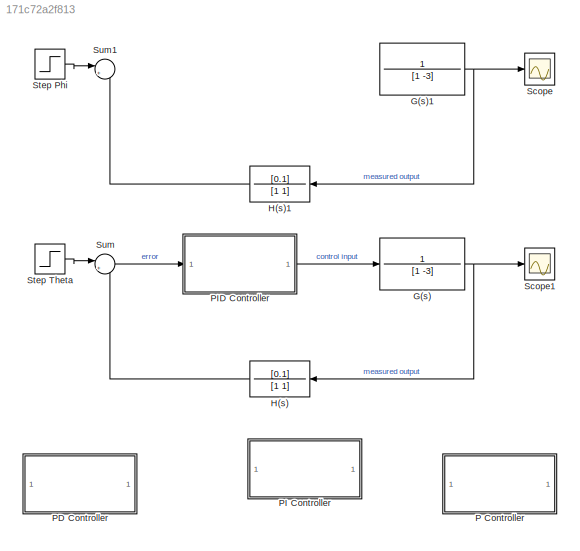
MODEL slx_171c72a2f813
KIND model
CONFIG AbsTol = auto
CONFIG EnableMultiTasking = on
CONFIG FixedStep = auto
CONFIG MaxStep = 0.01
CONFIG MinStep = auto
CONFIG RelTol = 1e-4
CONFIG SampleTimeConstraint = Unconstrained
CONFIG Solver = VariableStepAuto
CONFIG SolverName = VariableStepAuto
CONFIG StartTime = 0.0
CONFIG StopTime = 2
WORKSPACE source: MAT-file member
WORKSPACE MCOS: class17 (value not decoded)
BLOCK [TransferFcn] G(s)
  Denominator = [1 -3]
  Numerator = 1
BLOCK [TransferFcn] G(s)1
  Denominator = [1 -3]
  Numerator = 1
BLOCK [TransferFcn] H(s)
  Denominator = [1 1]
  Numerator = [0.1]
BLOCK [TransferFcn] H(s)1
  Denominator = [1 1]
  Numerator = [0.1]
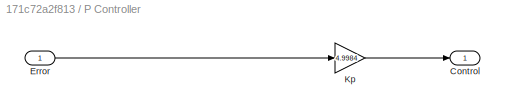
BLOCK [SubSystem] P Controller
  Commented = on
  Ports = [1, 1]
  RequestExecContextInheritance = off
  Variant = off
BLOCK [Outport] P Controller/Control
  IconDisplay = Port number
BLOCK [Inport] P Controller/Error
  IconDisplay = Port number
BLOCK [Gain] P Controller/Kp
  Gain = 4.9984
  OutDataTypeStr = Inherit: Inherit via internal rule
  ParamDataTypeStr = Inherit: Inherit via internal rule
  SaturateOnIntegerOverflow = off
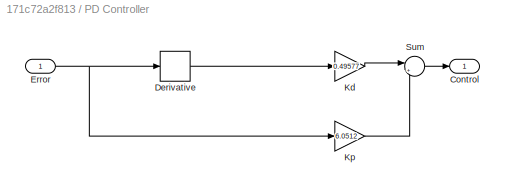
BLOCK [SubSystem] PD Controller
  Commented = on
  Ports = [1, 1]
  RequestExecContextInheritance = off
  Variant = off
BLOCK [Outport] PD Controller/Control
  IconDisplay = Port number
BLOCK [Derivative] PD Controller/Derivative
BLOCK [Inport] PD Controller/Error
  IconDisplay = Port number
BLOCK [Gain] PD Controller/Kd
  Gain = 0.49577
  OutDataTypeStr = Inherit: Inherit via internal rule
  ParamDataTypeStr = Inherit: Inherit via internal rule
  SaturateOnIntegerOverflow = off
BLOCK [Gain] PD Controller/Kp
  Gain = 6.0512
  OutDataTypeStr = Inherit: Inherit via internal rule
  ParamDataTypeStr = Inherit: Inherit via internal rule
  SaturateOnIntegerOverflow = off
BLOCK [Sum] PD Controller/Sum
  IconShape = round
  InputSameDT = off
  Inputs = |++
  OutDataTypeStr = Inherit: Inherit via internal rule
  Ports = [2, 1]
  SaturateOnIntegerOverflow = off
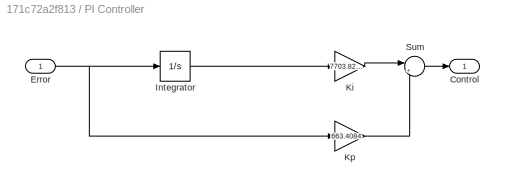
BLOCK [SubSystem] PI Controller
  Commented = on
  Ports = [1, 1]
  RequestExecContextInheritance = off
  Variant = off
BLOCK [Outport] PI Controller/Control
  IconDisplay = Port number
BLOCK [Inport] PI Controller/Error
  IconDisplay = Port number
BLOCK [Integrator] PI Controller/Integrator
  Ports = [1, 1]
BLOCK [Gain] PI Controller/Ki
  Gain = 7703.8239
  OutDataTypeStr = Inherit: Inherit via internal rule
  ParamDataTypeStr = Inherit: Inherit via internal rule
  SaturateOnIntegerOverflow = off
BLOCK [Gain] PI Controller/Kp
  Gain = 663.4084
  OutDataTypeStr = Inherit: Inherit via internal rule
  ParamDataTypeStr = Inherit: Inherit via internal rule
  SaturateOnIntegerOverflow = off
BLOCK [Sum] PI Controller/Sum
  IconShape = round
  InputSameDT = off
  Inputs = |++
  OutDataTypeStr = Inherit: Inherit via internal rule
  Ports = [2, 1]
  SaturateOnIntegerOverflow = off
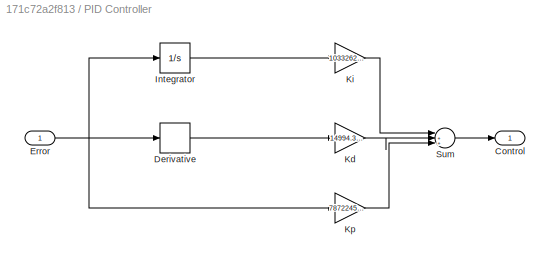
BLOCK [SubSystem] PID Controller
  Ports = [1, 1]
  RequestExecContextInheritance = off
  Variant = off
BLOCK [Outport] PID Controller/Control
  IconDisplay = Port number
BLOCK [Derivative] PID Controller/Derivative
BLOCK [Inport] PID Controller/Error
  IconDisplay = Port number
BLOCK [Integrator] PID Controller/Integrator
  Ports = [1, 1]
BLOCK [Gain] PID Controller/Kd
  Gain = 14994.315
  OutDataTypeStr = Inherit: Inherit via internal rule
  ParamDataTypeStr = Inherit: Inherit via internal rule
  SaturateOnIntegerOverflow = off
BLOCK [Gain] PID Controller/Ki
  Gain = 1033262529.7528
  OutDataTypeStr = Inherit: Inherit via internal rule
  ParamDataTypeStr = Inherit: Inherit via internal rule
  SaturateOnIntegerOverflow = off
BLOCK [Gain] PID Controller/Kp
  Gain = 7872245.8883
  OutDataTypeStr = Inherit: Inherit via internal rule
  ParamDataTypeStr = Inherit: Inherit via internal rule
  SaturateOnIntegerOverflow = off
BLOCK [Sum] PID Controller/Sum
  IconShape = round
  InputSameDT = off
  Inputs = |+++
  OutDataTypeStr = Inherit: Inherit via internal rule
  Ports = [3, 1]
  SaturateOnIntegerOverflow = off
BLOCK [Scope] Scope
  NumInputPorts = 1
  Ports = [1]
  ScopeSpecificationString = Simulink.scopes.TimeScopeBlockCfg('CurrentConfiguration', extmgr.ConfigurationSet(extmgr.Configuration('Core','General UI',true),extmgr.Configuration('Core','Source UI',true),extmgr.Configuration('Sources','WiredSimulink',true),extmgr.Configuration('Visuals','Time Domain',true,'SerializedDisplays',{struct('MinYLimReal','-1.79631','MaxYLimReal','1.89705','YLabelReal','','MinYLimMag','0.00000','MaxY...<+1364ch>
BLOCK [Scope] Scope1
  NumInputPorts = 1
  Ports = [1]
  ScopeSpecificationString = Simulink.scopes.TimeScopeBlockCfg('CurrentConfiguration', extmgr.ConfigurationSet(extmgr.Configuration('Core','General UI',true),extmgr.Configuration('Core','Source UI',true),extmgr.Configuration('Sources','WiredSimulink',true,'DataLoggingVariableName','ScopeData1'),extmgr.Configuration('Visuals','Time Domain',true,'SerializedDisplays',{struct('MinYLimReal','-109.43411','MaxYLimReal','102.04308','...<+1417ch>
BLOCK [Step] Step Phi
  After = 0.087266
  Before = 0.034907
  SampleTime = 0
BLOCK [Step] Step Theta
  After = -1.1519
  Before = 1.4661
  SampleTime = 0
BLOCK [Sum] Sum
  IconShape = round
  InputSameDT = off
  Inputs = |+-
  OutDataTypeStr = Inherit: Inherit via internal rule
  Ports = [2, 1]
  SaturateOnIntegerOverflow = off
BLOCK [Sum] Sum1
  IconShape = round
  InputSameDT = off
  Inputs = |+-
  OutDataTypeStr = Inherit: Inherit via internal rule
  Ports = [2, 1]
  SaturateOnIntegerOverflow = off
NET G(s)1:1 -> H(s)1:1, Scope:1
NET G(s):1 -> H(s):1, Scope1:1
LINE H(s)1:1 -> Sum1:2
LINE H(s):1 -> Sum:2
LINE P Controller/Error:1 -> P Controller/Kp:1
LINE P Controller/Kp:1 -> P Controller/Control:1
LINE PD Controller/Derivative:1 -> PD Controller/Kd:1
NET PD Controller/Error:1 -> PD Controller/Derivative:1, PD Controller/Kp:1
LINE PD Controller/Kd:1 -> PD Controller/Sum:1
LINE PD Controller/Kp:1 -> PD Controller/Sum:2
LINE PD Controller/Sum:1 -> PD Controller/Control:1
NET PI Controller/Error:1 -> PI Controller/Integrator:1, PI Controller/Kp:1
LINE PI Controller/Integrator:1 -> PI Controller/Ki:1
LINE PI Controller/Ki:1 -> PI Controller/Sum:1
LINE PI Controller/Kp:1 -> PI Controller/Sum:2
LINE PI Controller/Sum:1 -> PI Controller/Control:1
LINE PID Controller/Derivative:1 -> PID Controller/Kd:1
NET PID Controller/Error:1 -> PID Controller/Derivative:1, PID Controller/Integrator:1, PID Controller/Kp:1
LINE PID Controller/Integrator:1 -> PID Controller/Ki:1
LINE PID Controller/Kd:1 -> PID Controller/Sum:2
LINE PID Controller/Ki:1 -> PID Controller/Sum:1
LINE PID Controller/Kp:1 -> PID Controller/Sum:3
LINE PID Controller/Sum:1 -> PID Controller/Control:1
LINE PID Controller:1 -> G(s):1
LINE Step Phi:1 -> Sum1:1
LINE Step Theta:1 -> Sum:1
LINE Sum:1 -> PID Controller:1
note: NET lines group one-source signal fan-out (src -> all destinations, sorted); 1:1 wires keep LINE
